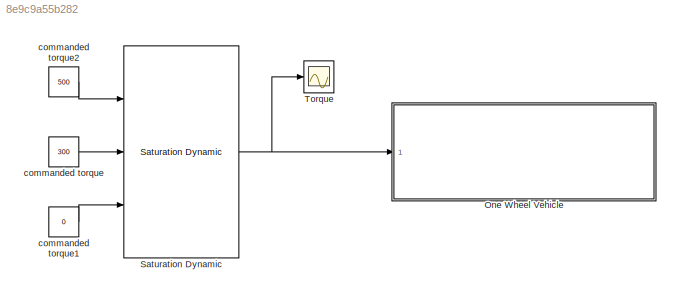
MODEL slx_8e9c9a55b282
KIND model
CONFIG AbsTol = auto
CONFIG FixedStep = auto
CONFIG MaxStep = auto
CONFIG MinStep = auto
CONFIG RelTol = 1e-3
CONFIG SampleTimeConstraint = Unconstrained
CONFIG Solver = VariableStepAuto
CONFIG SolverMode = Auto
CONFIG SolverName = VariableStepAuto
CONFIG StartTime = 0.0
CONFIG StopTime = 20
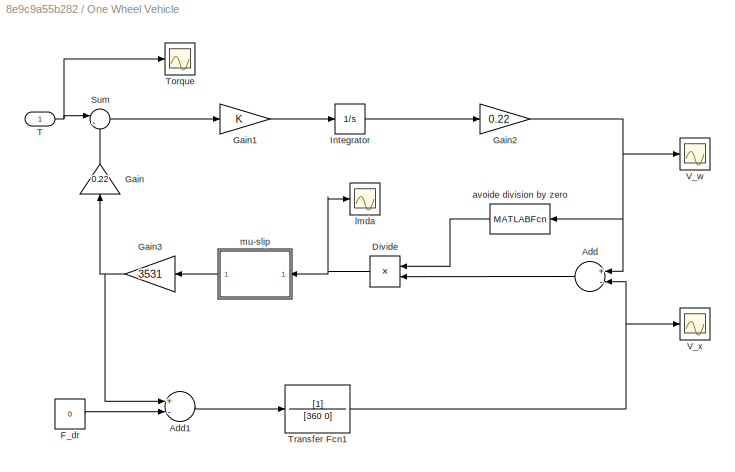
BLOCK [SubSystem] One Wheel Vehicle
  Ports = [1]
  RequestExecContextInheritance = off
  Variant = off
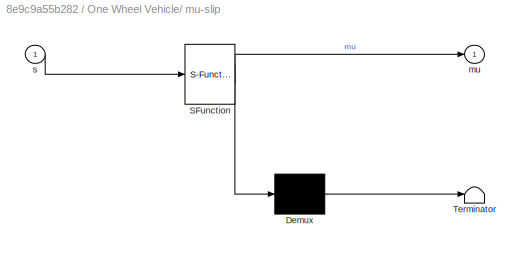
BLOCK [SubSystem] One Wheel Vehicle/ mu-slip
  ErrorFcn = Stateflow.Translate.translate
  PermitHierarchicalResolution = ExplicitOnly
  Ports = [1, 1]
  RequestExecContextInheritance = off
  SFBlockType = MATLAB Function
  TreatAsAtomicUnit = on
  Variant = off
BLOCK [Demux] One Wheel Vehicle/ mu-slip/ Demux 
  Outputs = 1
  Ports = [1, 1]
BLOCK [S-Function] One Wheel Vehicle/ mu-slip/ SFunction 
  EnableBusSupport = on
  FunctionName = sf_sfun
  PortCounts = [1 2]
  Ports = [1, 2]
  SFunctionDeploymentMode = off
  Tag = Stateflow S-Function yin_2009 1
BLOCK [Terminator] One Wheel Vehicle/ mu-slip/ Terminator 
BLOCK [Outport] One Wheel Vehicle/ mu-slip/mu
  IconDisplay = Port number
BLOCK [Inport] One Wheel Vehicle/ mu-slip/s
  IconDisplay = Port number
BLOCK [Sum] One Wheel Vehicle/Add
  InputSameDT = off
  Inputs = +-
  OutDataTypeStr = Inherit: Inherit via internal rule
  Ports = [2, 1]
  SaturateOnIntegerOverflow = off
BLOCK [Sum] One Wheel Vehicle/Add1
  InputSameDT = off
  Inputs = +-
  OutDataTypeStr = Inherit: Inherit via internal rule
  Ports = [2, 1]
  SaturateOnIntegerOverflow = off
BLOCK [Product] One Wheel Vehicle/Divide
  InputSameDT = off
  Inputs = /*
  OutDataTypeStr = Inherit: Inherit via internal rule
  Ports = [2, 1]
  RndMeth = Floor
  SaturateOnIntegerOverflow = off
BLOCK [Constant] One Wheel Vehicle/F_dr
  Value = 0
BLOCK [Gain] One Wheel Vehicle/Gain
  Gain = 0.22
  OutDataTypeStr = Inherit: Inherit via internal rule
  ParamDataTypeStr = Inherit: Inherit via internal rule
  SaturateOnIntegerOverflow = off
BLOCK [Gain] One Wheel Vehicle/Gain1
  OutDataTypeStr = Inherit: Inherit via internal rule
  ParamDataTypeStr = Inherit: Inherit via internal rule
  SaturateOnIntegerOverflow = off
BLOCK [Gain] One Wheel Vehicle/Gain2
  Gain = 0.22
  OutDataTypeStr = Inherit: Inherit via internal rule
  ParamDataTypeStr = Inherit: Inherit via internal rule
  SaturateOnIntegerOverflow = off
BLOCK [Gain] One Wheel Vehicle/Gain3
  Gain = 3531
  OutDataTypeStr = Inherit: Inherit via internal rule
  ParamDataTypeStr = Inherit: Inherit via internal rule
  SaturateOnIntegerOverflow = off
BLOCK [Integrator] One Wheel Vehicle/Integrator
  Ports = [1, 1]
BLOCK [Sum] One Wheel Vehicle/Sum
  IconShape = round
  InputSameDT = off
  Inputs = |+-
  OutDataTypeStr = Inherit: Inherit via internal rule
  Ports = [2, 1]
  SaturateOnIntegerOverflow = off
BLOCK [Inport] One Wheel Vehicle/T
  IconDisplay = Port number
BLOCK [Scope] One Wheel Vehicle/Torque
  Ports = [1]
  ScopeSpecificationString = Simulink.scopes.TimeScopeBlockCfg('CurrentConfiguration', extmgr.ConfigurationSet(extmgr.Configuration('Core','General UI',true),extmgr.Configuration('Core','Source UI',true),extmgr.Configuration('Sources','WiredSimulink',true,'DataLoggingVariableName','ScopeData3'),extmgr.Configuration('Visuals','Time Domain',true,'SerializedDisplays',{struct('MinYLimReal','-1.00000','MaxYLimReal','1.00000','YLab...<+1360ch>
BLOCK [TransferFcn] One Wheel Vehicle/Transfer Fcn1
  Denominator = [360 0]
BLOCK [Scope] One Wheel Vehicle/V_w
  Ports = [1]
  ScopeSpecificationString = Simulink.scopes.TimeScopeBlockCfg('CurrentConfiguration', extmgr.ConfigurationSet(extmgr.Configuration('Core','General UI',true),extmgr.Configuration('Core','Source UI',true),extmgr.Configuration('Sources','WiredSimulink',true,'DataLoggingVariableName','ScopeData1'),extmgr.Configuration('Visuals','Time Domain',true,'SerializedDisplays',{struct('MinYLimReal','-1.00000','MaxYLimReal','1.00000','YLab...<+1364ch>
BLOCK [Scope] One Wheel Vehicle/V_x
  Ports = [1]
  ScopeSpecificationString = Simulink.scopes.TimeScopeBlockCfg('CurrentConfiguration', extmgr.ConfigurationSet(extmgr.Configuration('Core','General UI',true),extmgr.Configuration('Core','Source UI',true),extmgr.Configuration('Sources','WiredSimulink',true,'DataLoggingVariableName','ScopeData1','DataLoggingLimitDataPoints',true,'DataLoggingSaveFormat','Array','DataLoggingDecimation','1','DataLoggingDecimateData',true),extmgr.C...<+1497ch>
BLOCK [MATLABFcn] One Wheel Vehicle/avoide division by zero
  MATLABFcn = u+(u==0)*0.1
  Ports = [1, 1]
BLOCK [Scope] One Wheel Vehicle/lmda
  Ports = [1]
  ScopeSpecificationString = Simulink.scopes.TimeScopeBlockCfg('CurrentConfiguration', extmgr.ConfigurationSet(extmgr.Configuration('Core','General UI',true),extmgr.Configuration('Core','Source UI',true),extmgr.Configuration('Sources','WiredSimulink',true,'DataLoggingVariableName','ScopeData2','DataLoggingLimitDataPoints',true,'DataLoggingSaveFormat','Array','DataLoggingDecimation','1','DataLoggingDecimateData',true),extmgr.C...<+1490ch>
BLOCK [Reference] Saturation Dynamic  REF=simulink/Discontinuities/Saturation
Dynamic
  Ports = [3, 1]
  SourceBlock = simulink/Discontinuities/Saturation\nDynamic
  SourceType = Saturation Dynamic
BLOCK [Scope] Torque
  Ports = [1]
  ScopeSpecificationString = Simulink.scopes.TimeScopeBlockCfg('CurrentConfiguration', extmgr.ConfigurationSet(extmgr.Configuration('Core','General UI',true),extmgr.Configuration('Core','Source UI',true),extmgr.Configuration('Sources','WiredSimulink',true,'DataLoggingVariableName','ScopeData4'),extmgr.Configuration('Visuals','Time Domain',true,'SerializedDisplays',{struct('MinYLimReal','-1.00000','MaxYLimReal','1.00000','YLab...<+1377ch>
BLOCK [Constant] commanded torque
  Value = 300
BLOCK [Constant] commanded torque1
  Value = 0
BLOCK [Constant] commanded torque2
  Value = 500
LINE One Wheel Vehicle/ mu-slip:1 -> One Wheel Vehicle/Gain3:1
LINE One Wheel Vehicle/Add1:1 -> One Wheel Vehicle/Transfer Fcn1:1
LINE One Wheel Vehicle/Add:1 -> One Wheel Vehicle/Divide:2
NET One Wheel Vehicle/Divide:1 -> One Wheel Vehicle/ mu-slip:1, One Wheel Vehicle/lmda:1
LINE One Wheel Vehicle/F_dr:1 -> One Wheel Vehicle/Add1:2
LINE One Wheel Vehicle/Gain1:1 -> One Wheel Vehicle/Integrator:1
NET One Wheel Vehicle/Gain2:1 -> One Wheel Vehicle/Add:1, One Wheel Vehicle/V_w:1, One Wheel Vehicle/avoide division by zero:1
NET One Wheel Vehicle/Gain3:1 -> One Wheel Vehicle/Add1:1, One Wheel Vehicle/Gain:1
LINE One Wheel Vehicle/Gain:1 -> One Wheel Vehicle/Sum:2
LINE One Wheel Vehicle/Integrator:1 -> One Wheel Vehicle/Gain2:1
LINE One Wheel Vehicle/Sum:1 -> One Wheel Vehicle/Gain1:1
NET One Wheel Vehicle/T:1 -> One Wheel Vehicle/Sum:1, One Wheel Vehicle/Torque:1
NET One Wheel Vehicle/Transfer Fcn1:1 -> One Wheel Vehicle/Add:2, One Wheel Vehicle/V_x:1
LINE One Wheel Vehicle/avoide division by zero:1 -> One Wheel Vehicle/Divide:1
NET Saturation Dynamic:1 -> One Wheel Vehicle:1, Torque:1
LINE commanded torque1:1 -> Saturation Dynamic:3
LINE commanded torque2:1 -> Saturation Dynamic:1
LINE commanded torque:1 -> Saturation Dynamic:2
note: NET lines group one-source signal fan-out (src -> all destinations, sorted); 1:1 wires keep LINE
CHART One Wheel Vehicle/ mu-slip states=1 transitions=1
  STATE_LABEL 'eML_blk_kernel()'
  STATE_LABEL 'SCRIPT:\nfunction mu = fcn(s)\n\nmu = sin(1.9 * atan(  10*s-0.97*(10*s-atan( 10*s )))  );'
